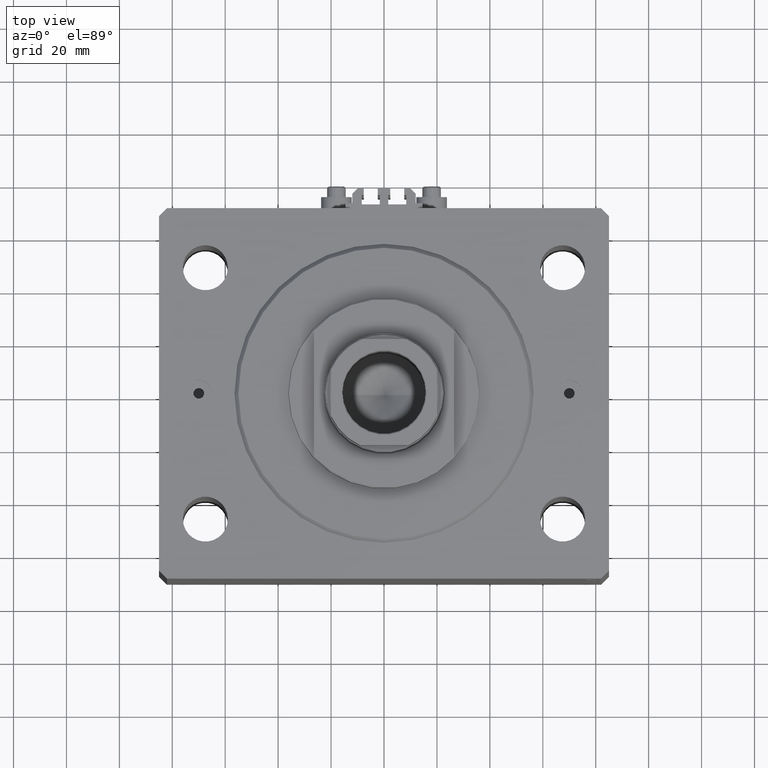
[diagram: clean part render]
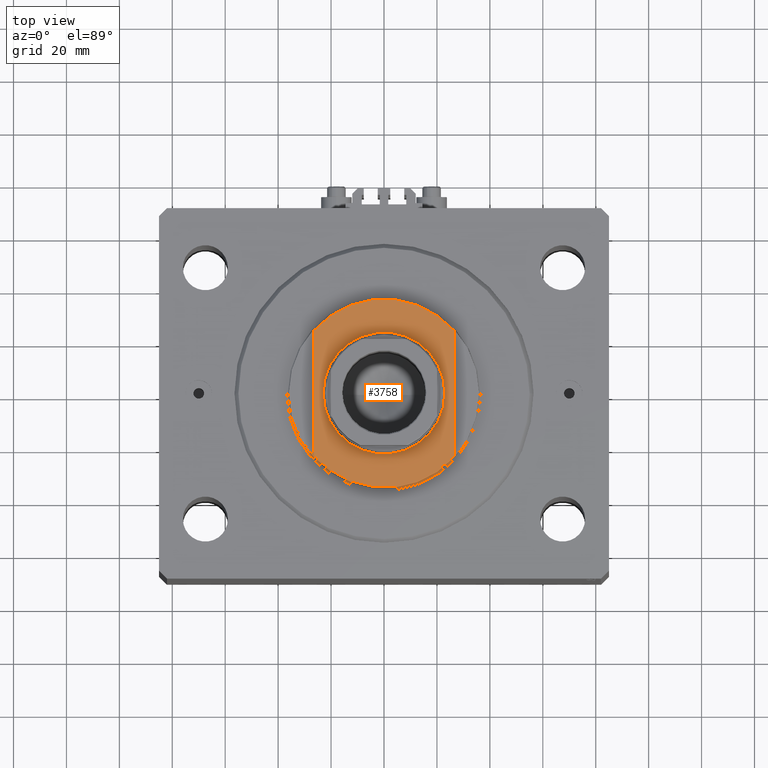
[diagram: same view with one face highlighted and labeled with its STEP entity id]
A machine part, top view. The second image highlights one B-rep face of the part: STEP entity #3758.
In plain terms, the highlighted planar face has unit normal (0, 0, 1).
Its self-contained STEP definition (entity closure, byte-faithful):
#50 = ORIENTED_EDGE ( 'NONE', *, *, #18397, .T. ) ;
#166 = AXIS2_PLACEMENT_3D ( 'NONE', #21257, #39661, #31516 ) ;
#257 = DIRECTION ( 'NONE',  ( -1.000000000000000000, 0.000000000000000000, 0.000000000000000000 ) ) ;
#519 = EDGE_CURVE ( 'NONE', #6406, #8162, #13907, .T. ) ;
#1334 = EDGE_LOOP ( 'NONE', ( #50, #14492 ) ) ;
#1579 = PLANE ( 'NONE',  #17278 ) ;
#2379 = VERTEX_POINT ( 'NONE', #7892 ) ;
#2414 = EDGE_CURVE ( 'NONE', #24554, #13033, #12492, .T. ) ;
#3750 = EDGE_LOOP ( 'NONE', ( #32847, #25342, #5085, #8499 ) ) ;
#3758 = ADVANCED_FACE ( 'NONE', ( #8728, #37851 ), #1579, .T. ) ;
#5085 = ORIENTED_EDGE ( 'NONE', *, *, #519, .T. ) ;
#5164 = DIRECTION ( 'NONE',  ( -1.000000000000000000, 0.000000000000000000, -0.000000000000000000 ) ) ;
#6406 = VERTEX_POINT ( 'NONE', #28230 ) ;
#7838 = CARTESIAN_POINT ( 'NONE',  ( -26.50000000000000000, 23.62202362203536765, -8.000000000000000000 ) ) ;
#7892 = CARTESIAN_POINT ( 'NONE',  ( -23.00000000000001776, 0.000000000000000000, -8.000000000000000000 ) ) ;
#8162 = VERTEX_POINT ( 'NONE', #45440 ) ;
#8259 = CARTESIAN_POINT ( 'NONE',  ( 0.000000000000000000, 0.000000000000000000, -8.000000000000000000 ) ) ;
#8499 = ORIENTED_EDGE ( 'NONE', *, *, #46815, .F. ) ;
#8728 = FACE_BOUND ( 'NONE', #1334, .T. ) ;
#11005 = DIRECTION ( 'NONE',  ( 0.000000000000000000, 0.000000000000000000, -1.000000000000000000 ) ) ;
#11382 = CARTESIAN_POINT ( 'NONE',  ( -26.50000000000000000, -36.36963018783666257, -8.000000000000000000 ) ) ;
#11710 = CARTESIAN_POINT ( 'NONE',  ( 26.50000000000000000, 23.62202362203536765, -8.000000000000000000 ) ) ;
#12492 = CIRCLE ( 'NONE', #39174, 35.49999999999996447 ) ;
#13033 = VERTEX_POINT ( 'NONE', #11710 ) ;
#13907 = CIRCLE ( 'NONE', #38262, 35.49999999999996447 ) ;
#14492 = ORIENTED_EDGE ( 'NONE', *, *, #22056, .T. ) ;
#17020 = VECTOR ( 'NONE', #19174, 1000.000000000000000 ) ;
#17278 = AXIS2_PLACEMENT_3D ( 'NONE', #8259, #34264, #5164 ) ;
#18397 = EDGE_CURVE ( 'NONE', #2379, #19881, #23749, .T. ) ;
#18580 = CARTESIAN_POINT ( 'NONE',  ( 23.00000000000001776, 2.816687638038914718E-15, -8.000000000000000000 ) ) ;
#19174 = DIRECTION ( 'NONE',  ( 0.000000000000000000, -1.000000000000000000, -0.000000000000000000 ) ) ;
#19881 = VERTEX_POINT ( 'NONE', #18580 ) ;
#21257 = CARTESIAN_POINT ( 'NONE',  ( 0.000000000000000000, 0.000000000000000000, -8.000000000000000000 ) ) ;
#22056 = EDGE_CURVE ( 'NONE', #19881, #2379, #41366, .T. ) ;
#23201 = LINE ( 'NONE', #30364, #17020 ) ;
#23749 = CIRCLE ( 'NONE', #166, 23.00000000000001776 ) ;
#24554 = VERTEX_POINT ( 'NONE', #7838 ) ;
#24718 = EDGE_CURVE ( 'NONE', #13033, #6406, #23201, .T. ) ;
#25319 = AXIS2_PLACEMENT_3D ( 'NONE', #31197, #31675, #46260 ) ;
#25342 = ORIENTED_EDGE ( 'NONE', *, *, #24718, .T. ) ;
#28230 = CARTESIAN_POINT ( 'NONE',  ( 26.50000000000000000, -23.62202362203536765, -8.000000000000000000 ) ) ;
#30364 = CARTESIAN_POINT ( 'NONE',  ( 26.50000000000000000, -36.36963018783666257, -8.000000000000000000 ) ) ;
#31197 = CARTESIAN_POINT ( 'NONE',  ( 0.000000000000000000, 0.000000000000000000, -8.000000000000000000 ) ) ;
#31516 = DIRECTION ( 'NONE',  ( -1.000000000000000000, 0.000000000000000000, 0.000000000000000000 ) ) ;
#31607 = DIRECTION ( 'NONE',  ( -1.000000000000000000, 0.000000000000000000, 0.000000000000000000 ) ) ;
#31675 = DIRECTION ( 'NONE',  ( -0.000000000000000000, -0.000000000000000000, 1.000000000000000000 ) ) ;
#32847 = ORIENTED_EDGE ( 'NONE', *, *, #2414, .T. ) ;
#34264 = DIRECTION ( 'NONE',  ( 0.000000000000000000, 0.000000000000000000, -1.000000000000000000 ) ) ;
#37851 = FACE_OUTER_BOUND ( 'NONE', #3750, .T. ) ;
#38262 = AXIS2_PLACEMENT_3D ( 'NONE', #42145, #41915, #31607 ) ;
#38821 = VECTOR ( 'NONE', #44565, 1000.000000000000000 ) ;
#39174 = AXIS2_PLACEMENT_3D ( 'NONE', #44187, #11005, #257 ) ;
#39661 = DIRECTION ( 'NONE',  ( -0.000000000000000000, -0.000000000000000000, 1.000000000000000000 ) ) ;
#41366 = CIRCLE ( 'NONE', #25319, 23.00000000000001776 ) ;
#41915 = DIRECTION ( 'NONE',  ( 0.000000000000000000, 0.000000000000000000, -1.000000000000000000 ) ) ;
#42145 = CARTESIAN_POINT ( 'NONE',  ( 0.000000000000000000, 0.000000000000000000, -8.000000000000000000 ) ) ;
#44187 = CARTESIAN_POINT ( 'NONE',  ( 0.000000000000000000, 0.000000000000000000, -8.000000000000000000 ) ) ;
#44565 = DIRECTION ( 'NONE',  ( -0.000000000000000000, -1.000000000000000000, -0.000000000000000000 ) ) ;
#44800 = LINE ( 'NONE', #11382, #38821 ) ;
#45440 = CARTESIAN_POINT ( 'NONE',  ( -26.50000000000000711, -23.62202362203537476, -8.000000000000000000 ) ) ;
#46260 = DIRECTION ( 'NONE',  ( -1.000000000000000000, 0.000000000000000000, 0.000000000000000000 ) ) ;
#46815 = EDGE_CURVE ( 'NONE', #24554, #8162, #44800, .T. ) ;